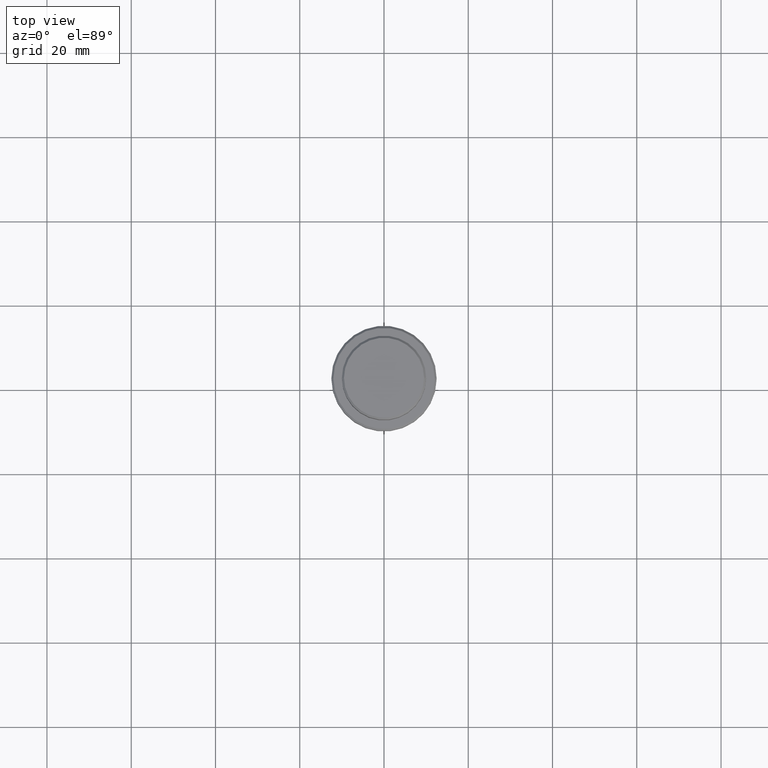
[diagram: clean part render]
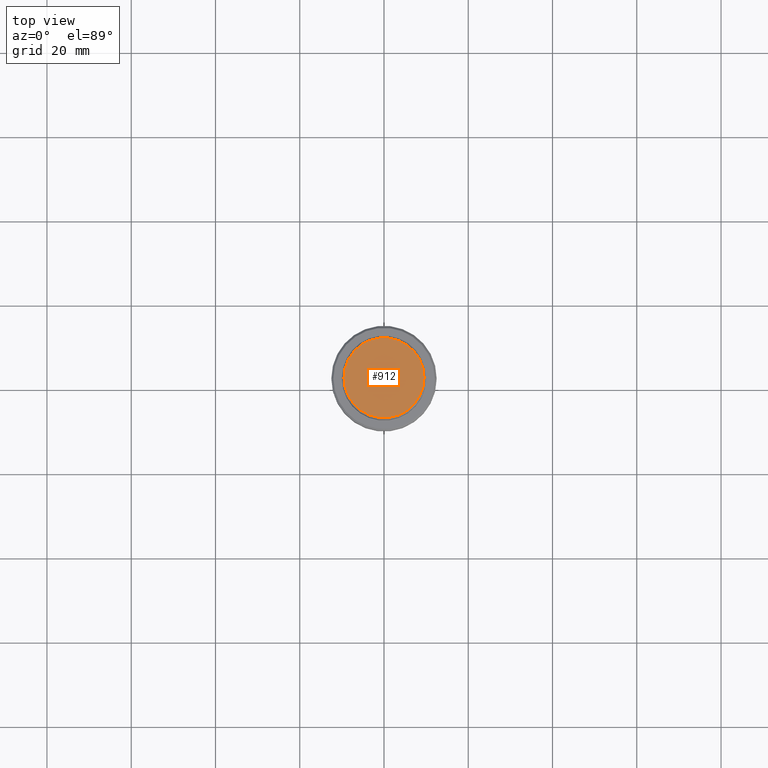
[diagram: same view with one face highlighted and labeled with its STEP entity id]
A machine part, top view. The second image highlights one B-rep face of the part: STEP entity #912.
In plain terms, the highlighted planar face has unit normal (0, -0, 1).
Its self-contained STEP definition (entity closure, byte-faithful):
#113 = CARTESIAN_POINT ( 'NONE',  ( 9.500000000000023093, 1.194030629168670653E-15, 0.000000000000000000 ) ) ;
#206 = VERTEX_POINT ( 'NONE', #113 ) ;
#216 = DIRECTION ( 'NONE',  ( 1.000000000000000000, 0.000000000000000000, 0.000000000000000000 ) ) ;
#223 = DIRECTION ( 'NONE',  ( 0.000000000000000000, -0.000000000000000000, 1.000000000000000000 ) ) ;
#309 = DIRECTION ( 'NONE',  ( -0.000000000000000000, -0.000000000000000000, 1.000000000000000000 ) ) ;
#315 = DIRECTION ( 'NONE',  ( 1.000000000000000000, 0.000000000000000000, 0.000000000000000000 ) ) ;
#324 = PLANE ( 'NONE',  #1042 ) ;
#331 = DIRECTION ( 'NONE',  ( 1.000000000000000000, 0.000000000000000000, 0.000000000000000000 ) ) ;
#418 = CARTESIAN_POINT ( 'NONE',  ( 0.000000000000000000, 0.000000000000000000, 0.000000000000000000 ) ) ;
#441 = FACE_OUTER_BOUND ( 'NONE', #635, .T. ) ;
#459 = AXIS2_PLACEMENT_3D ( 'NONE', #746, #1010, #315 ) ;
#536 = CARTESIAN_POINT ( 'NONE',  ( 0.000000000000000000, 0.000000000000000000, 0.000000000000000000 ) ) ;
#632 = CARTESIAN_POINT ( 'NONE',  ( -9.500000000000023093, 0.000000000000000000, 0.000000000000000000 ) ) ;
#635 = EDGE_LOOP ( 'NONE', ( #1079, #907 ) ) ;
#694 = CIRCLE ( 'NONE', #834, 9.500000000000023093 ) ;
#746 = CARTESIAN_POINT ( 'NONE',  ( 0.000000000000000000, 0.000000000000000000, 0.000000000000000000 ) ) ;
#834 = AXIS2_PLACEMENT_3D ( 'NONE', #418, #309, #216 ) ;
#904 = EDGE_CURVE ( 'NONE', #1319, #206, #694, .T. ) ;
#907 = ORIENTED_EDGE ( 'NONE', *, *, #945, .T. ) ;
#912 = ADVANCED_FACE ( 'NONE', ( #441 ), #324, .T. ) ;
#945 = EDGE_CURVE ( 'NONE', #206, #1319, #1403, .T. ) ;
#1010 = DIRECTION ( 'NONE',  ( -0.000000000000000000, -0.000000000000000000, 1.000000000000000000 ) ) ;
#1042 = AXIS2_PLACEMENT_3D ( 'NONE', #536, #223, #331 ) ;
#1079 = ORIENTED_EDGE ( 'NONE', *, *, #904, .T. ) ;
#1319 = VERTEX_POINT ( 'NONE', #632 ) ;
#1403 = CIRCLE ( 'NONE', #459, 9.500000000000023093 ) ;